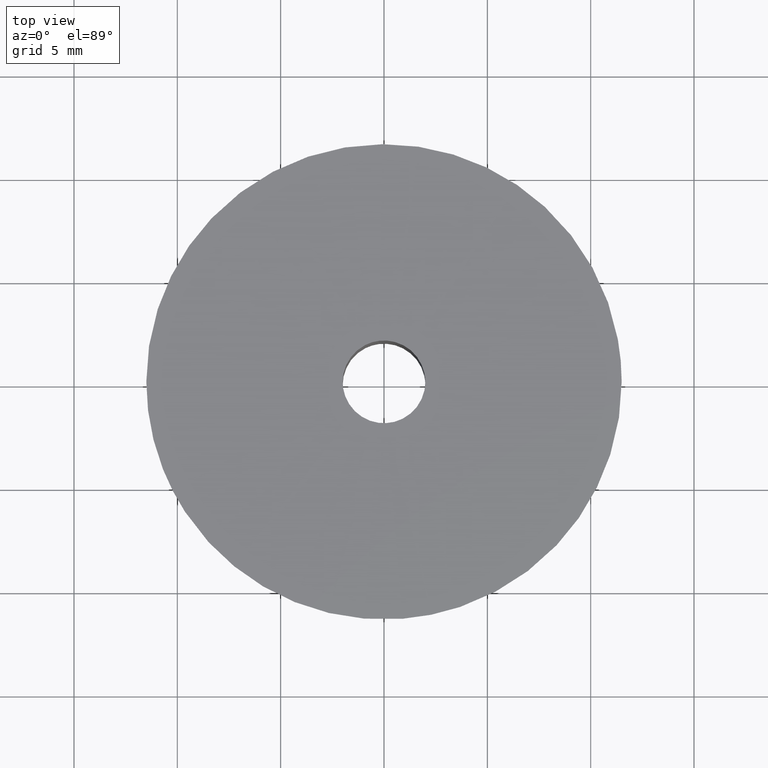
[diagram: clean part render]
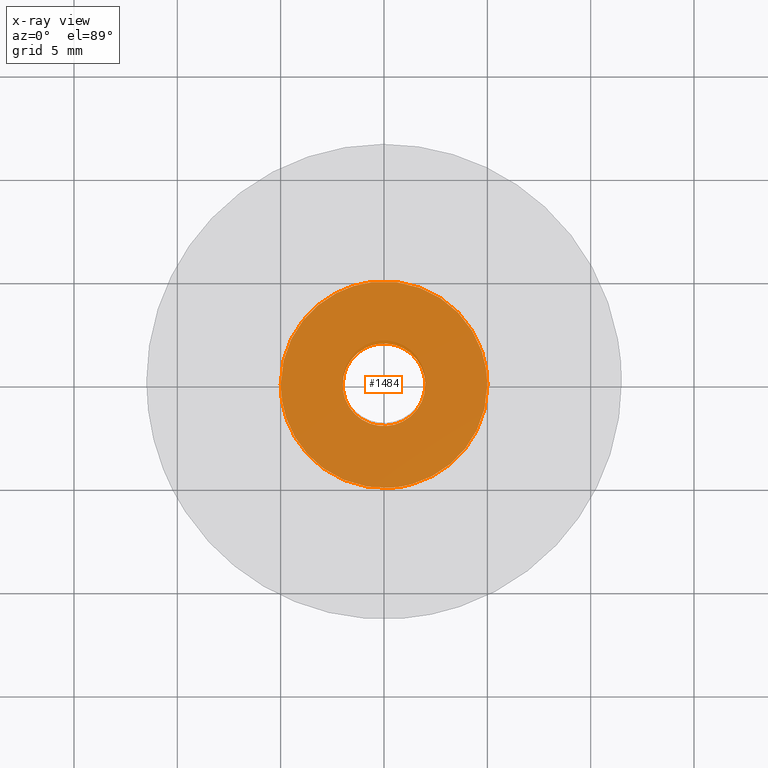
[diagram: x-ray — body ghosted, one internal face saturated and labeled with its STEP entity id]
A machine part, top view, then the same camera in x-ray: the body is ghosted and one INTERNAL B-rep face — a face not visible from any outside direction — is saturated and labeled: STEP entity #1484.
In plain terms, the highlighted face is a freeform B-spline surface patch.
Its self-contained STEP definition (entity closure, byte-faithful):
#940=CARTESIAN_POINT('',(-0.236065917800784,1.986019356009974,5.800000000000001));
#941=VERTEX_POINT('',#940);
#947=CARTESIAN_POINT('',(2.0,0.0,5.800000000000000));
#948=VERTEX_POINT('',#947);
#949=CARTESIAN_POINT('',(-0.236065917800784,1.986019356009974,5.800000000000002));
#950=CARTESIAN_POINT('',(-0.118446950060566,2.0,5.800000000000000));
#951=CARTESIAN_POINT('',(0.0,2.0,5.800000000000000));
#952=CARTESIAN_POINT('',(2.000000000000000,2.000000000000000,5.800000000000001));
#953=CARTESIAN_POINT('',(2.0,0.0,5.800000000000000));
#961=(BOUNDED_CURVE()B_SPLINE_CURVE(2,(#949,#950,#951,#952,#953),.UNSPECIFIED.,.F.,.U.)B_SPLINE_CURVE_WITH_KNOTS((3,2,3),(0.229562690640437,0.250000000000000,0.500000000000000),.UNSPECIFIED.)CURVE()GEOMETRIC_REPRESENTATION_ITEM()RATIONAL_B_SPLINE_CURVE((0.956027179761807,0.976056202711165,1.0,0.707106781186548,1.0))REPRESENTATION_ITEM(''));
#962=EDGE_CURVE('',#941,#948,#961,.T.);
#964=CARTESIAN_POINT('',(0.122097079102479,-1.996269596841730,5.799999999999999));
#965=VERTEX_POINT('',#964);
#966=CARTESIAN_POINT('',(2.0,0.0,5.800000000000000));
#967=CARTESIAN_POINT('',(2.000000000000000,-1.881412133749522,5.800000000000002));
#968=CARTESIAN_POINT('',(0.122097079102479,-1.996269596841730,5.799999999999999));
#976=(BOUNDED_CURVE()B_SPLINE_CURVE(2,(#966,#967,#968),.UNSPECIFIED.,.F.,.U.)B_SPLINE_CURVE_WITH_KNOTS((3,3),(0.500000000000000,0.739332962236305),.UNSPECIFIED.)CURVE()GEOMETRIC_REPRESENTATION_ITEM()RATIONAL_B_SPLINE_CURVE((1.0,0.719603993289801,0.976072041661064))REPRESENTATION_ITEM(''));
#977=EDGE_CURVE('',#948,#965,#976,.T.);
#1051=CARTESIAN_POINT('',(-2.0,0.0,5.800000000000000));
#1052=VERTEX_POINT('',#1051);
#1053=CARTESIAN_POINT('',(0.122097079102479,-1.996269596841730,5.799999999999999));
#1054=CARTESIAN_POINT('',(0.061105526630035,-2.0,5.800000000000001));
#1055=CARTESIAN_POINT('',(0.0,-2.0,5.800000000000000));
#1056=CARTESIAN_POINT('',(-2.000000000000000,-2.000000000000000,5.800000000000001));
#1057=CARTESIAN_POINT('',(-2.0,0.0,5.800000000000000));
#1065=(BOUNDED_CURVE()B_SPLINE_CURVE(2,(#1053,#1054,#1055,#1056,#1057),.UNSPECIFIED.,.F.,.U.)B_SPLINE_CURVE_WITH_KNOTS((3,2,3),(0.739332962236304,0.750000000000000,1.0),.UNSPECIFIED.)CURVE()GEOMETRIC_REPRESENTATION_ITEM()RATIONAL_B_SPLINE_CURVE((0.976072041661062,0.987502787896746,1.0,0.707106781186548,1.0))REPRESENTATION_ITEM(''));
#1066=EDGE_CURVE('',#965,#1052,#1065,.T.);
#1068=CARTESIAN_POINT('',(-2.0,0.0,5.800000000000000));
#1069=CARTESIAN_POINT('',(-2.000000000000000,1.776351350111119,5.800000000000000));
#1070=CARTESIAN_POINT('',(-0.236065917800784,1.986019356009974,5.800000000000002));
#1078=(BOUNDED_CURVE()B_SPLINE_CURVE(2,(#1068,#1069,#1070),.UNSPECIFIED.,.F.,.U.)B_SPLINE_CURVE_WITH_KNOTS((3,3),(0.0,0.229562690640437),.UNSPECIFIED.)CURVE()GEOMETRIC_REPRESENTATION_ITEM()RATIONAL_B_SPLINE_CURVE((1.0,0.731050578475383,0.956027179761807))REPRESENTATION_ITEM(''));
#1079=EDGE_CURVE('',#1052,#941,#1078,.T.);
#1111=CARTESIAN_POINT('',(-0.590168625237022,4.965047934690988,5.799999999999919));
#1112=VERTEX_POINT('',#1111);
#1113=CARTESIAN_POINT('',(5.0,0.0,5.800000000000000));
#1114=VERTEX_POINT('',#1113);
#1115=CARTESIAN_POINT('',(-0.590168625237022,4.965047934690989,5.799999999999919));
#1116=CARTESIAN_POINT('',(-0.296119310767451,4.999999999999999,5.800000000000000));
#1117=CARTESIAN_POINT('',(0.0,5.0,5.800000000000000));
#1118=CARTESIAN_POINT('',(5.000000000000001,5.000000000000001,5.800000000000001));
#1119=CARTESIAN_POINT('',(5.0,0.0,5.800000000000000));
#1127=(BOUNDED_CURVE()B_SPLINE_CURVE(2,(#1115,#1116,#1117,#1118,#1119),.UNSPECIFIED.,.F.,.U.)B_SPLINE_CURVE_WITH_KNOTS((3,2,3),(0.229562560247581,0.250000000000000,0.500000000000000),.UNSPECIFIED.)CURVE()GEOMETRIC_REPRESENTATION_ITEM()RATIONAL_B_SPLINE_CURVE((0.956026924186102,0.976056049946432,1.0,0.707106781186548,1.0))REPRESENTATION_ITEM(''));
#1128=EDGE_CURVE('',#1112,#1114,#1127,.T.);
#1169=CARTESIAN_POINT('',(0.305234977263521,-4.990674464297897,5.799999999999766));
#1170=VERTEX_POINT('',#1169);
#1176=CARTESIAN_POINT('',(5.0,0.0,5.800000000000000));
#1177=CARTESIAN_POINT('',(4.999999999999999,-4.703537624338884,5.800000000000002));
#1178=CARTESIAN_POINT('',(0.305234977263521,-4.990674464297897,5.799999999999766));
#1186=(BOUNDED_CURVE()B_SPLINE_CURVE(2,(#1176,#1177,#1178),.UNSPECIFIED.,.F.,.U.)B_SPLINE_CURVE_WITH_KNOTS((3,3),(0.500000000000000,0.739333229166308),.UNSPECIFIED.)CURVE()GEOMETRIC_REPRESENTATION_ITEM()RATIONAL_B_SPLINE_CURVE((1.0,0.719603680561850,0.976072613743540))REPRESENTATION_ITEM(''));
#1187=EDGE_CURVE('',#1114,#1170,#1186,.T.);
#1210=CARTESIAN_POINT('',(-5.0,0.0,5.800000000000000));
#1211=VERTEX_POINT('',#1210);
#1212=CARTESIAN_POINT('',(-5.0,0.0,5.800000000000000));
#1213=CARTESIAN_POINT('',(-5.0,4.440874924842770,5.800000000000001));
#1214=CARTESIAN_POINT('',(-0.590168625237022,4.965047934690989,5.799999999999919));
#1222=(BOUNDED_CURVE()B_SPLINE_CURVE(2,(#1212,#1213,#1214),.UNSPECIFIED.,.F.,.U.)B_SPLINE_CURVE_WITH_KNOTS((3,3),(0.0,0.229562560247581),.UNSPECIFIED.)CURVE()GEOMETRIC_REPRESENTATION_ITEM()RATIONAL_B_SPLINE_CURVE((1.0,0.731050731240115,0.956026924186102))REPRESENTATION_ITEM(''));
#1223=EDGE_CURVE('',#1211,#1112,#1222,.T.);
#1225=CARTESIAN_POINT('',(0.305234977263521,-4.990674464297897,5.799999999999766));
#1226=CARTESIAN_POINT('',(0.152759945464380,-5.0,5.800000000000001));
#1227=CARTESIAN_POINT('',(0.0,-5.0,5.800000000000000));
#1228=CARTESIAN_POINT('',(-5.000000000000001,-5.000000000000001,5.800000000000001));
#1229=CARTESIAN_POINT('',(-5.0,0.0,5.800000000000000));
#1237=(BOUNDED_CURVE()B_SPLINE_CURVE(2,(#1225,#1226,#1227,#1228,#1229),.UNSPECIFIED.,.F.,.U.)B_SPLINE_CURVE_WITH_KNOTS((3,2,3),(0.739333229166308,0.750000000000000,1.0),.UNSPECIFIED.)CURVE()GEOMETRIC_REPRESENTATION_ITEM()RATIONAL_B_SPLINE_CURVE((0.976072613743540,0.987503100624697,1.0,0.707106781186548,1.0))REPRESENTATION_ITEM(''));
#1238=EDGE_CURVE('',#1170,#1211,#1237,.T.);
#1467=CARTESIAN_POINT('',(-5.499499980618060,-5.499378285062297,5.800000000000000));
#1468=CARTESIAN_POINT('',(5.499500248838961,-5.499378285062297,5.800000000000000));
#1469=CARTESIAN_POINT('',(-5.499499980618060,5.499409041059002,5.800000000000000));
#1470=CARTESIAN_POINT('',(5.499500248838961,5.499409041059002,5.800000000000000));
#1471=B_SPLINE_SURFACE_WITH_KNOTS('',1,1,((#1467,#1469),(#1468,#1470)),.UNSPECIFIED.,.F.,.F.,.U.,(2,2),(2,2),(0.0,10.999000229457019),(0.0,10.998787326121301),.UNSPECIFIED.);
#1472=ORIENTED_EDGE('',*,*,#1223,.T.);
#1473=ORIENTED_EDGE('',*,*,#1128,.T.);
#1474=ORIENTED_EDGE('',*,*,#1187,.T.);
#1475=ORIENTED_EDGE('',*,*,#1238,.T.);
#1476=EDGE_LOOP('',(#1472,#1473,#1474,#1475));
#1477=FACE_OUTER_BOUND('',#1476,.T.);
#1478=ORIENTED_EDGE('',*,*,#977,.F.);
#1479=ORIENTED_EDGE('',*,*,#962,.F.);
#1480=ORIENTED_EDGE('',*,*,#1079,.F.);
#1481=ORIENTED_EDGE('',*,*,#1066,.F.);
#1482=EDGE_LOOP('',(#1478,#1479,#1480,#1481));
#1483=FACE_BOUND('',#1482,.T.);
#1484=ADVANCED_FACE('',(#1477,#1483),#1471,.F.);